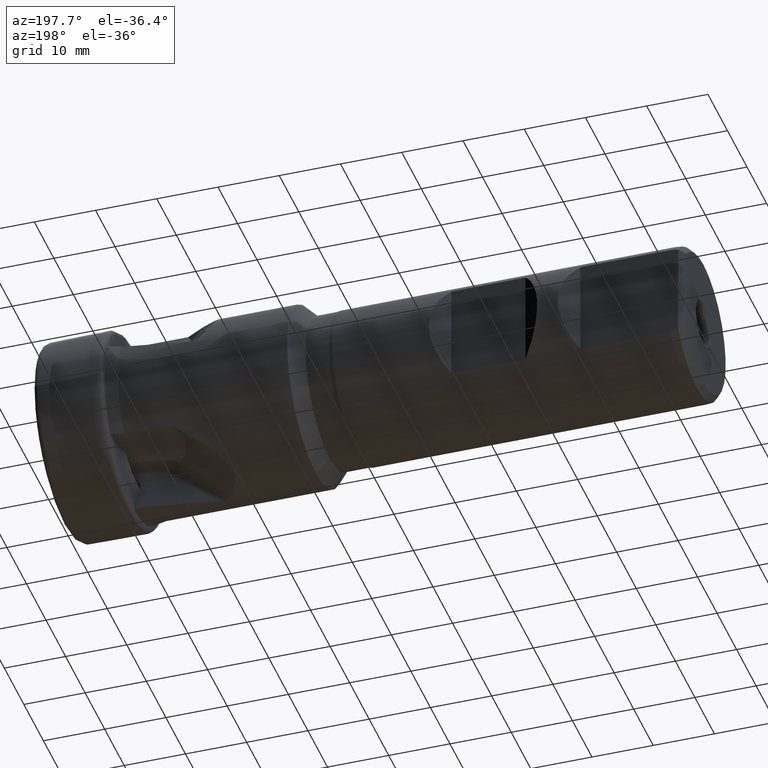
[diagram: clean part render]
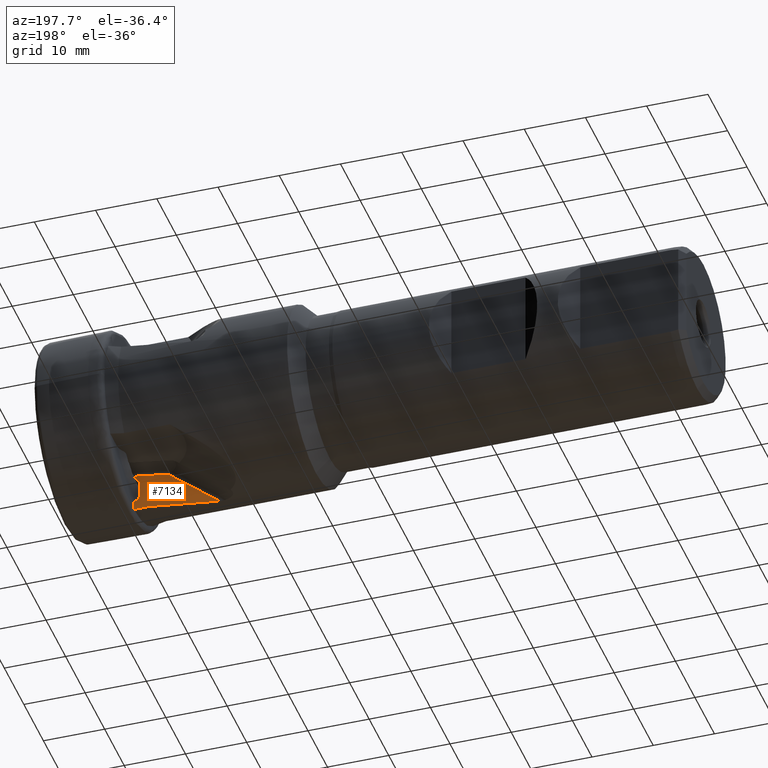
[diagram: same view with one face highlighted and labeled with its STEP entity id]
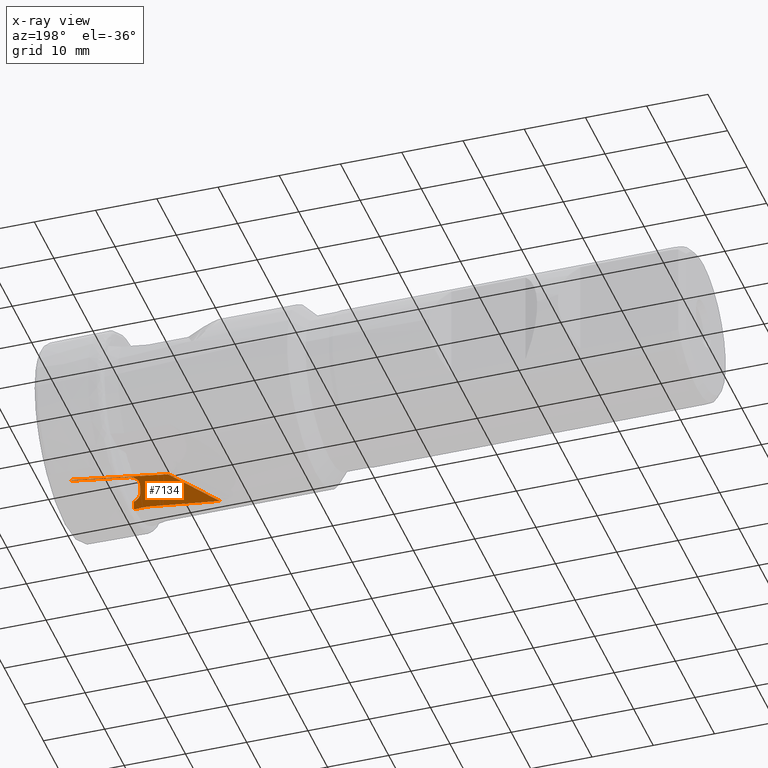
[diagram: x-ray of the same camera — body ghosted, the highlighted face saturated]
A machine part, auxiliary view. The second image highlights one B-rep face of the part: STEP entity #7134.
The next image is the same camera in x-ray: the body ghosted, the highlighted face saturated — about 0% of this face is hidden behind the body in this view.
In plain terms, the highlighted planar face has unit normal (0.2079, -0.9781, 0).
Its self-contained STEP definition (entity closure, byte-faithful):
#699 = LINE ( 'NONE', #1944, #703 ) ;
#703 = VECTOR ( 'NONE', #1961, 1000.000000000000000 ) ;
#842 = EDGE_CURVE ( 'NONE', #1804, #5475, #939, .T. ) ;
#848 = EDGE_CURVE ( 'NONE', #5505, #1745, #3786, .T. ) ;
#849 = EDGE_CURVE ( 'NONE', #5499, #5505, #4867, .T. ) ;
#850 = EDGE_CURVE ( 'NONE', #5507, #5499, #974, .T. ) ;
#851 = EDGE_CURVE ( 'NONE', #5501, #5507, #4870, .T. ) ;
#852 = EDGE_CURVE ( 'NONE', #1807, #5501, #937, .T. ) ;
#853 = EDGE_CURVE ( 'NONE', #5562, #5466, #4873, .T. ) ;
#889 = EDGE_CURVE ( 'NONE', #1807, #1804, #973, .T. ) ;
#937 =( BOUNDED_CURVE ( )  B_SPLINE_CURVE ( 3, ( #5454, #5446, #5422, #5441 ),
 .UNSPECIFIED., .F., .T. ) 
 B_SPLINE_CURVE_WITH_KNOTS ( ( 4, 4 ),
 ( 3.594306283986002300, 4.712388338278062200 ),
 .UNSPECIFIED. ) 
 CURVE ( )  GEOMETRIC_REPRESENTATION_ITEM ( )  RATIONAL_B_SPLINE_CURVE ( ( 1.000000000000000000, 0.8985094096662816800, 0.8985094096662816800, 1.000000000000000000 ) ) 
 REPRESENTATION_ITEM ( '' )  );
#939 =( BOUNDED_CURVE ( )  B_SPLINE_CURVE ( 3, ( #7503, #7577, #7542, #7540 ),
 .UNSPECIFIED., .F., .T. ) 
 B_SPLINE_CURVE_WITH_KNOTS ( ( 4, 4 ),
 ( 2.550038088137637400, 2.566738240983223600 ),
 .UNSPECIFIED. ) 
 CURVE ( )  GEOMETRIC_REPRESENTATION_ITEM ( )  RATIONAL_B_SPLINE_CURVE ( ( 1.000000000000000000, 0.9999767588762831200, 0.9999767588762831200, 1.000000000000000000 ) ) 
 REPRESENTATION_ITEM ( '' )  );
#973 = B_SPLINE_CURVE_WITH_KNOTS ( 'NONE', 3,
 ( #3521, #3520, #3514, #3513 ),
 .UNSPECIFIED., .F., .F.,
 ( 4, 4 ),
 ( 0.01759210823764020500, 0.01907853109898980500 ),
 .UNSPECIFIED. ) ;
#974 =( BOUNDED_CURVE ( )  B_SPLINE_CURVE ( 3, ( #5437, #5409, #5442, #5452 ),
 .UNSPECIFIED., .F., .T. ) 
 B_SPLINE_CURVE_WITH_KNOTS ( ( 4, 4 ),
 ( 4.712388338278062200, 6.661171806347084600 ),
 .UNSPECIFIED. ) 
 CURVE ( )  GEOMETRIC_REPRESENTATION_ITEM ( )  RATIONAL_B_SPLINE_CURVE ( ( 1.000000000000000000, 0.7077809417292423300, 0.7077809417292423300, 1.000000000000000000 ) ) 
 REPRESENTATION_ITEM ( '' )  );
#988 = CARTESIAN_POINT ( 'NONE',  ( -0.9434238283181370900, 2.057819448911986100, -8.692132169675398100 ) ) ;
#994 = CARTESIAN_POINT ( 'NONE',  ( -1.311792122893815400, 1.979520350788732000, -8.827925074332084100 ) ) ;
#1452 = CARTESIAN_POINT ( 'NONE',  ( -15.27216259302617200, -0.9878479959820696300, -8.163522966058156500 ) ) ;
#1454 = PLANE ( 'NONE',  #6037 ) ;
#1456 = DIRECTION ( 'NONE',  ( 0.2079116908177433600, -0.9781476007338090200, 5.368720321858592200E-022 ) ) ;
#1457 = DIRECTION ( 'NONE',  ( 0.9781476007338090200, 0.2079116908177433600, 0.0000000000000000000 ) ) ;
#1637 = EDGE_LOOP ( 'NONE', ( #2752, #2748, #2749, #2750, #2747, #2746, #2751, #2745, #2754, #2753, #6825, #6818 ) ) ;
#1745 = VERTEX_POINT ( 'NONE', #994 ) ;
#1748 = VERTEX_POINT ( 'NONE', #988 ) ;
#1759 = VERTEX_POINT ( 'NONE', #5305 ) ;
#1804 = VERTEX_POINT ( 'NONE', #5378 ) ;
#1807 = VERTEX_POINT ( 'NONE', #5376 ) ;
#1944 = CARTESIAN_POINT ( 'NONE',  ( -28.28499571448239200, -3.753811061864362800, -17.65285121495631800 ) ) ;
#1961 = DIRECTION ( 'NONE',  ( 0.7963251410003942000, 0.1692641339424258200, 0.5807029557109408800 ) ) ;
#2740 = VECTOR ( 'NONE', #7518, 1000.000000000000100 ) ;
#2745 = ORIENTED_EDGE ( 'NONE', *, *, #889, .T. ) ;
#2746 = ORIENTED_EDGE ( 'NONE', *, *, #851, .F. ) ;
#2747 = ORIENTED_EDGE ( 'NONE', *, *, #850, .F. ) ;
#2748 = ORIENTED_EDGE ( 'NONE', *, *, #3463, .T. ) ;
#2749 = ORIENTED_EDGE ( 'NONE', *, *, #848, .F. ) ;
#2750 = ORIENTED_EDGE ( 'NONE', *, *, #849, .F. ) ;
#2751 = ORIENTED_EDGE ( 'NONE', *, *, #852, .F. ) ;
#2752 = ORIENTED_EDGE ( 'NONE', *, *, #5701, .T. ) ;
#2753 = ORIENTED_EDGE ( 'NONE', *, *, #5715, .T. ) ;
#2754 = ORIENTED_EDGE ( 'NONE', *, *, #842, .T. ) ;
#3271 = CARTESIAN_POINT ( 'NONE',  ( -0.9501822142853734200, 2.056382909628351000, -8.663532367746183700 ) ) ;
#3272 = CARTESIAN_POINT ( 'NONE',  ( -0.9479295350604345400, 2.056861731378950300, -8.673065663729515200 ) ) ;
#3277 = CARTESIAN_POINT ( 'NONE',  ( -0.9456767393675863400, 2.057340577885566500, -8.682598930949319900 ) ) ;
#3278 = CARTESIAN_POINT ( 'NONE',  ( -0.9434238283181370900, 2.057819448911986100, -8.692132169675398100 ) ) ;
#3463 = EDGE_CURVE ( 'NONE', #1748, #1745, #6220, .T. ) ;
#3513 = CARTESIAN_POINT ( 'NONE',  ( -10.74335849155813000, -0.02522096769700046500, -15.05890472131305400 ) ) ;
#3514 = CARTESIAN_POINT ( 'NONE',  ( -10.74099376906855100, -0.02471833041531218800, -14.56044909826176900 ) ) ;
#3520 = CARTESIAN_POINT ( 'NONE',  ( -10.73862856464722000, -0.02421559069586898600, -14.06199347760012600 ) ) ;
#3521 = CARTESIAN_POINT ( 'NONE',  ( -10.73626359608978500, -0.02371290111084336000, -13.56353785576974900 ) ) ;
#3786 = LINE ( 'NONE', #7481, #2740 ) ;
#3805 = EDGE_CURVE ( 'NONE', #1759, #5562, #699, .T. ) ;
#4065 =( BOUNDED_CURVE ( )  B_SPLINE_CURVE ( 3, ( #7339, #7347, #7353, #7354 ),
 .UNSPECIFIED., .F., .F. ) 
 B_SPLINE_CURVE_WITH_KNOTS ( ( 4, 4 ),
 ( 1.602792890552703800, 1.763343063059263700 ),
 .UNSPECIFIED. ) 
 CURVE ( )  GEOMETRIC_REPRESENTATION_ITEM ( )  RATIONAL_B_SPLINE_CURVE ( ( 1.000000000000000000, 0.9978531234359593300, 0.9978531234359593300, 1.000000000000000000 ) ) 
 REPRESENTATION_ITEM ( '' )  );
#4867 = LINE ( 'NONE', #7491, #4868 ) ;
#4868 = VECTOR ( 'NONE', #7500, 1000.000000000000000 ) ;
#4869 = VECTOR ( 'NONE', #5436, 1000.000000000000000 ) ;
#4870 = LINE ( 'NONE', #7456, #4869 ) ;
#4872 = VECTOR ( 'NONE', #5443, 1000.000000000000200 ) ;
#4873 = LINE ( 'NONE', #5421, #4872 ) ;
#5200 = CARTESIAN_POINT ( 'NONE',  ( -0.9434238283181370900, 2.057819448911986100, -8.692132169675398100 ) ) ;
#5201 = CARTESIAN_POINT ( 'NONE',  ( -1.008246338804480000, 2.044040998964187200, -8.701207288601924700 ) ) ;
#5206 = CARTESIAN_POINT ( 'NONE',  ( -1.072928745231595200, 2.030292329053504700, -8.718857740726416900 ) ) ;
#5207 = CARTESIAN_POINT ( 'NONE',  ( -1.195930231411805900, 2.004147556070738000, -8.765676671439708300 ) ) ;
#5208 = CARTESIAN_POINT ( 'NONE',  ( -1.254802901940971900, 1.991633783647142900, -8.794765699038412900 ) ) ;
#5209 = CARTESIAN_POINT ( 'NONE',  ( -1.311792122893815400, 1.979520350788732000, -8.827925074332084100 ) ) ;
#5305 = CARTESIAN_POINT ( 'NONE',  ( -23.84973096524476300, -2.811066436670234900, -14.41852993507403200 ) ) ;
#5376 = CARTESIAN_POINT ( 'NONE',  ( -10.73626359608978500, -0.02371290111084336000, -13.56353785576974900 ) ) ;
#5378 = CARTESIAN_POINT ( 'NONE',  ( -10.74335849155813000, -0.02522096769700046500, -15.05890472131305400 ) ) ;
#5409 = CARTESIAN_POINT ( 'NONE',  ( -11.67177023164108000, -0.2225609749831030400, -9.193350802833729000 ) ) ;
#5421 = CARTESIAN_POINT ( 'NONE',  ( -15.27216290706369900, -0.9878480627328067900, -8.663522966058053500 ) ) ;
#5422 = CARTESIAN_POINT ( 'NONE',  ( -11.67177024002319300, -0.2225609767647766800, -12.70049198683901500 ) ) ;
#5436 = DIRECTION ( 'NONE',  ( 2.390013136929915500E-009, 5.080129747325147100E-010, 1.000000000000000000 ) ) ;
#5437 = CARTESIAN_POINT ( 'NONE',  ( -11.67177023481948700, -0.2225609756586947900, -10.52322114289659000 ) ) ;
#5441 = CARTESIAN_POINT ( 'NONE',  ( -11.67177023841819600, -0.2225609764236248500, -12.02895089921160500 ) ) ;
#5442 = CARTESIAN_POINT ( 'NONE',  ( -10.59962739328694100, 0.005330020356572227000, -8.446400647675503100 ) ) ;
#5443 = DIRECTION ( 'NONE',  ( 0.9781476007336072900, 0.2079116908177004700, -6.421066250862953600E-007 ) ) ;
#5446 = CARTESIAN_POINT ( 'NONE',  ( -11.32471149574290300, -0.1487913633830489100, -13.26980042147118300 ) ) ;
#5452 = CARTESIAN_POINT ( 'NONE',  ( -9.395243431423827100, 0.2613297342206942800, -8.937189890168506100 ) ) ;
#5454 = CARTESIAN_POINT ( 'NONE',  ( -10.73626359608978500, -0.02371290111084336000, -13.56353785576974900 ) ) ;
#5457 = B_SPLINE_CURVE_WITH_KNOTS ( 'NONE', 3,
 ( #3271, #3272, #3277, #3278 ),
 .UNSPECIFIED., .F., .F.,
 ( 4, 4 ),
 ( 0.0005145694082138166800, 0.0005439919862036549400 ),
 .UNSPECIFIED. ) ;
#5466 = VERTEX_POINT ( 'NONE', #6313 ) ;
#5475 = VERTEX_POINT ( 'NONE', #6328 ) ;
#5499 = VERTEX_POINT ( 'NONE', #6352 ) ;
#5501 = VERTEX_POINT ( 'NONE', #6354 ) ;
#5505 = VERTEX_POINT ( 'NONE', #6358 ) ;
#5507 = VERTEX_POINT ( 'NONE', #6360 ) ;
#5562 = VERTEX_POINT ( 'NONE', #6387 ) ;
#5701 = EDGE_CURVE ( 'NONE', #5466, #1748, #5457, .T. ) ;
#5715 = EDGE_CURVE ( 'NONE', #5475, #1759, #4065, .T. ) ;
#5866 = FACE_OUTER_BOUND ( 'NONE', #1637, .T. ) ;
#6037 = AXIS2_PLACEMENT_3D ( 'NONE', #1452, #1456, #1457 ) ;
#6220 = B_SPLINE_CURVE_WITH_KNOTS ( 'NONE', 3,
 ( #5200, #5201, #5206, #5207, #5208, #5209 ),
 .UNSPECIFIED., .F., .F.,
 ( 4, 2, 4 ),
 ( 0.0001731263909410313200, 0.0003736354413284218200, 0.0005741444917158123400 ),
 .UNSPECIFIED. ) ;
#6313 = CARTESIAN_POINT ( 'NONE',  ( -0.9501822142853734200, 2.056382909628351000, -8.663532367746183700 ) ) ;
#6328 = CARTESIAN_POINT ( 'NONE',  ( -12.83564090980894600, -0.4699493245629979300, -14.68248097674040800 ) ) ;
#6352 = CARTESIAN_POINT ( 'NONE',  ( -9.395243431423827100, 0.2613297342206942800, -8.937189890168506100 ) ) ;
#6354 = CARTESIAN_POINT ( 'NONE',  ( -11.67177023841819600, -0.2225609764236248500, -12.02895089921160500 ) ) ;
#6358 = CARTESIAN_POINT ( 'NONE',  ( -9.395243431423825300, 0.2613297342206940500, -8.827925074333084200 ) ) ;
#6360 = CARTESIAN_POINT ( 'NONE',  ( -11.67177023481948700, -0.2225609756586947900, -10.52322114289659000 ) ) ;
#6387 = CARTESIAN_POINT ( 'NONE',  ( -15.95781815609642600, -1.133588584958193000, -8.663522515958522500 ) ) ;
#6818 = ORIENTED_EDGE ( 'NONE', *, *, #853, .T. ) ;
#6825 = ORIENTED_EDGE ( 'NONE', *, *, #3805, .T. ) ;
#7134 = ADVANCED_FACE ( 'NONE', ( #5866 ), #1454, .F. ) ;
#7339 = CARTESIAN_POINT ( 'NONE',  ( -12.83564090980894600, -0.4699493245629979300, -14.68248097674040800 ) ) ;
#7347 = CARTESIAN_POINT ( 'NONE',  ( -16.53631885871120800, -1.256552705229673700, -14.65730377896099600 ) ) ;
#7353 = CARTESIAN_POINT ( 'NONE',  ( -20.21558113247164500, -2.038604043622358500, -14.56913080190753700 ) ) ;
#7354 = CARTESIAN_POINT ( 'NONE',  ( -23.84973096524476300, -2.811066436670234900, -14.41852993507403200 ) ) ;
#7456 = CARTESIAN_POINT ( 'NONE',  ( -11.67177022917977400, -0.2225609744599373300, -8.163522975051916900 ) ) ;
#7481 = CARTESIAN_POINT ( 'NONE',  ( -15.27216259302617200, -0.9878479959820696300, -8.827925074333082400 ) ) ;
#7491 = CARTESIAN_POINT ( 'NONE',  ( -9.395243431423825300, 0.2613297342206940500, -8.163522966058156500 ) ) ;
#7500 = DIRECTION ( 'NONE',  ( -2.506968599971980800E-022, 4.955788101688154700E-022, 1.000000000000000000 ) ) ;
#7503 = CARTESIAN_POINT ( 'NONE',  ( -10.74335849155813000, -0.02522096769700046500, -15.05890472131305400 ) ) ;
#7518 = DIRECTION ( 'NONE',  ( 0.9781476007338090200, 0.2079116908177433600, -1.630056654196469800E-016 ) ) ;
#7540 = CARTESIAN_POINT ( 'NONE',  ( -12.83564090980894600, -0.4699493245629979300, -14.68248097674040800 ) ) ;
#7542 = CARTESIAN_POINT ( 'NONE',  ( -12.14704847444977200, -0.3235844841110749900, -14.80864535148460000 ) ) ;
#7577 = CARTESIAN_POINT ( 'NONE',  ( -11.44960479232458500, -0.1753382530800757000, -14.93412284924686500 ) ) ;